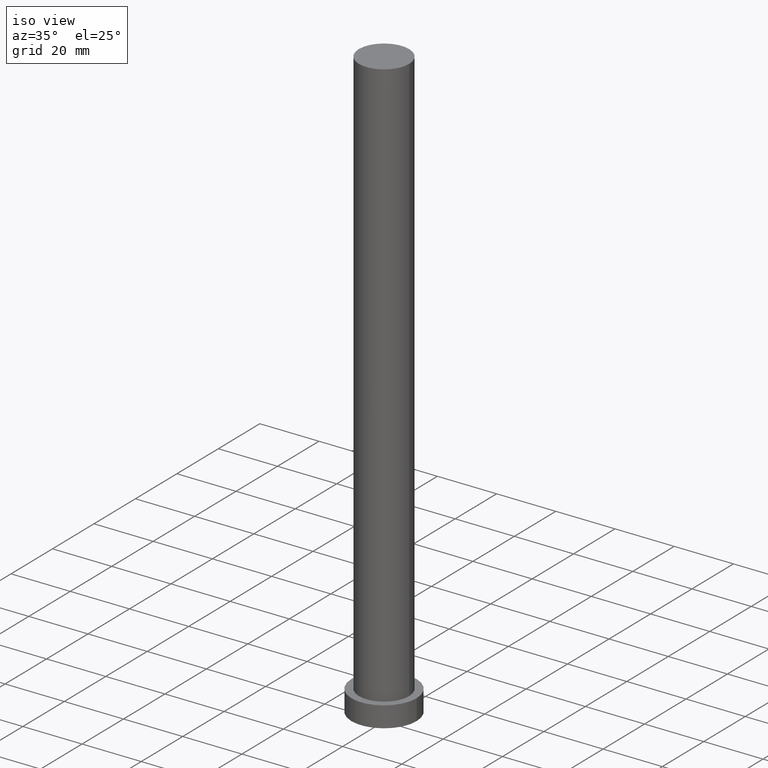
[diagram: clean part render]
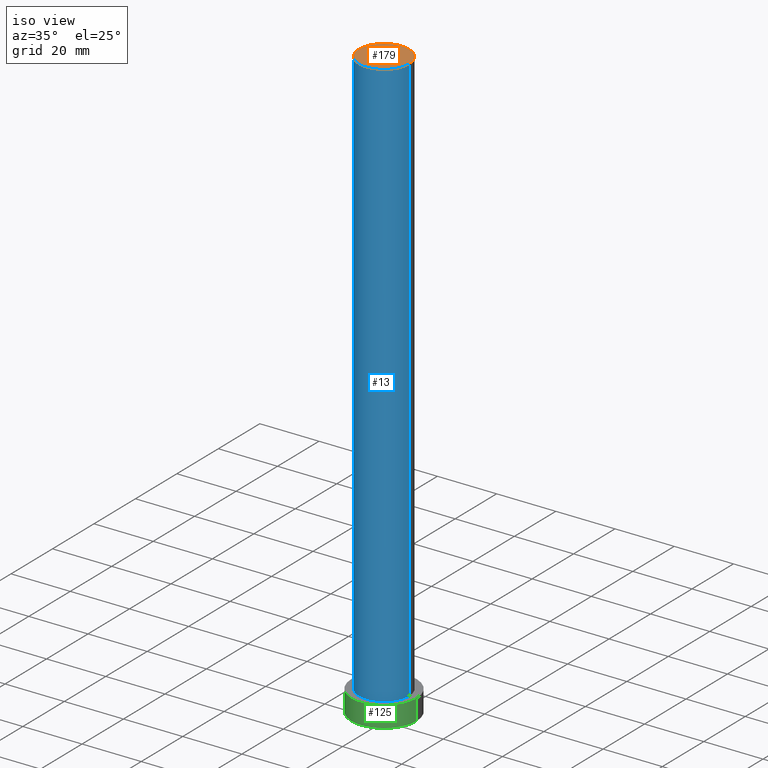
[diagram: same view with three faces highlighted in distinct colors, each labeled with its STEP entity id]
A machine part, iso view with three faces highlighted in distinct colors.
Their STEP definitions:

[orange] entity #179 — the highlighted planar face has unit normal (0, 0, 1).
#7 = AXIS2_PLACEMENT_3D ( 'NONE', #89, #120, #103 ) ;
#14 = ORIENTED_EDGE ( 'NONE', *, *, #20, .T. ) ;
#20 = EDGE_CURVE ( 'NONE', #144, #82, #83, .T. ) ;
#40 = DIRECTION ( 'NONE',  ( 0.000000000000000000, 0.000000000000000000, 1.000000000000000000 ) ) ;
#82 = VERTEX_POINT ( 'NONE', #219 ) ;
#83 = CIRCLE ( 'NONE', #234, 8.500000000000000000 ) ;
#89 = CARTESIAN_POINT ( 'NONE',  ( 0.000000000000000000, 0.000000000000000000, 200.0000000000000000 ) ) ;
#103 = DIRECTION ( 'NONE',  ( 1.000000000000000000, 0.000000000000000000, 0.000000000000000000 ) ) ;
#115 = AXIS2_PLACEMENT_3D ( 'NONE', #212, #189, #252 ) ;
#120 = DIRECTION ( 'NONE',  ( 0.000000000000000000, 0.000000000000000000, 1.000000000000000000 ) ) ;
#144 = VERTEX_POINT ( 'NONE', #193 ) ;
#149 = PLANE ( 'NONE',  #115 ) ;
#151 = DIRECTION ( 'NONE',  ( 1.000000000000000000, 0.000000000000000000, 0.000000000000000000 ) ) ;
#164 = ORIENTED_EDGE ( 'NONE', *, *, #232, .T. ) ;
#167 = CIRCLE ( 'NONE', #7, 8.500000000000000000 ) ;
#175 = FACE_OUTER_BOUND ( 'NONE', #181, .T. ) ;
#179 = ADVANCED_FACE ( 'NONE', ( #175 ), #149, .T. ) ;
#181 = EDGE_LOOP ( 'NONE', ( #164, #14 ) ) ;
#186 = CARTESIAN_POINT ( 'NONE',  ( 0.000000000000000000, 0.000000000000000000, 200.0000000000000000 ) ) ;
#189 = DIRECTION ( 'NONE',  ( 0.000000000000000000, 0.000000000000000000, 1.000000000000000000 ) ) ;
#193 = CARTESIAN_POINT ( 'NONE',  ( 8.500000000000000000, 1.040949779275250140E-15, 200.0000000000000000 ) ) ;
#212 = CARTESIAN_POINT ( 'NONE',  ( 0.000000000000000000, 0.000000000000000000, 200.0000000000000000 ) ) ;
#219 = CARTESIAN_POINT ( 'NONE',  ( -8.500000000000000000, 0.000000000000000000, 200.0000000000000000 ) ) ;
#232 = EDGE_CURVE ( 'NONE', #82, #144, #167, .T. ) ;
#234 = AXIS2_PLACEMENT_3D ( 'NONE', #186, #40, #151 ) ;
#252 = DIRECTION ( 'NONE',  ( 1.000000000000000000, 0.000000000000000000, -0.000000000000000000 ) ) ;

[blue] entity #13 — the highlighted cylindrical surface (edge-blend (fillet) strip) has radius 8.5 mm, axis along (-0, -0, -1).
#7 = AXIS2_PLACEMENT_3D ( 'NONE', #89, #120, #103 ) ;
#8 = CARTESIAN_POINT ( 'NONE',  ( -8.500000000000000000, 0.000000000000000000, 7.000000000000000000 ) ) ;
#13 = ADVANCED_FACE ( 'NONE', ( #166 ), #61, .T. ) ;
#17 = LINE ( 'NONE', #76, #202 ) ;
#22 = DIRECTION ( 'NONE',  ( -0.000000000000000000, -0.000000000000000000, -1.000000000000000000 ) ) ;
#36 = VERTEX_POINT ( 'NONE', #92 ) ;
#38 = DIRECTION ( 'NONE',  ( -1.000000000000000000, 0.000000000000000000, 0.000000000000000000 ) ) ;
#41 = CIRCLE ( 'NONE', #216, 8.500000000000000000 ) ;
#44 = ORIENTED_EDGE ( 'NONE', *, *, #49, .F. ) ;
#49 = EDGE_CURVE ( 'NONE', #144, #36, #17, .T. ) ;
#59 = DIRECTION ( 'NONE',  ( -0.000000000000000000, -0.000000000000000000, -1.000000000000000000 ) ) ;
#61 = CYLINDRICAL_SURFACE ( 'NONE', #122, 8.500000000000000000 ) ;
#76 = CARTESIAN_POINT ( 'NONE',  ( 8.500000000000000000, 1.040949779275250140E-15, 200.0000000000000000 ) ) ;
#82 = VERTEX_POINT ( 'NONE', #219 ) ;
#84 = ORIENTED_EDGE ( 'NONE', *, *, #165, .T. ) ;
#89 = CARTESIAN_POINT ( 'NONE',  ( 0.000000000000000000, 0.000000000000000000, 200.0000000000000000 ) ) ;
#92 = CARTESIAN_POINT ( 'NONE',  ( 8.500000000000000000, 1.040949779275250140E-15, 7.000000000000000000 ) ) ;
#95 = CARTESIAN_POINT ( 'NONE',  ( -8.500000000000000000, 0.000000000000000000, 200.0000000000000000 ) ) ;
#97 = ORIENTED_EDGE ( 'NONE', *, *, #232, .F. ) ;
#103 = DIRECTION ( 'NONE',  ( 1.000000000000000000, 0.000000000000000000, 0.000000000000000000 ) ) ;
#108 = LINE ( 'NONE', #95, #168 ) ;
#120 = DIRECTION ( 'NONE',  ( 0.000000000000000000, 0.000000000000000000, 1.000000000000000000 ) ) ;
#122 = AXIS2_PLACEMENT_3D ( 'NONE', #253, #247, #38 ) ;
#124 = EDGE_LOOP ( 'NONE', ( #44, #97, #84, #243 ) ) ;
#133 = EDGE_CURVE ( 'NONE', #198, #36, #41, .T. ) ;
#144 = VERTEX_POINT ( 'NONE', #193 ) ;
#165 = EDGE_CURVE ( 'NONE', #82, #198, #108, .T. ) ;
#166 = FACE_OUTER_BOUND ( 'NONE', #124, .T. ) ;
#167 = CIRCLE ( 'NONE', #7, 8.500000000000000000 ) ;
#168 = VECTOR ( 'NONE', #22, 1000.000000000000000 ) ;
#172 = DIRECTION ( 'NONE',  ( 0.000000000000000000, 0.000000000000000000, 1.000000000000000000 ) ) ;
#193 = CARTESIAN_POINT ( 'NONE',  ( 8.500000000000000000, 1.040949779275250140E-15, 200.0000000000000000 ) ) ;
#194 = CARTESIAN_POINT ( 'NONE',  ( 0.000000000000000000, 0.000000000000000000, 7.000000000000000000 ) ) ;
#198 = VERTEX_POINT ( 'NONE', #8 ) ;
#202 = VECTOR ( 'NONE', #59, 1000.000000000000000 ) ;
#216 = AXIS2_PLACEMENT_3D ( 'NONE', #194, #172, #235 ) ;
#219 = CARTESIAN_POINT ( 'NONE',  ( -8.500000000000000000, 0.000000000000000000, 200.0000000000000000 ) ) ;
#232 = EDGE_CURVE ( 'NONE', #82, #144, #167, .T. ) ;
#235 = DIRECTION ( 'NONE',  ( 1.000000000000000000, 0.000000000000000000, 0.000000000000000000 ) ) ;
#243 = ORIENTED_EDGE ( 'NONE', *, *, #133, .T. ) ;
#247 = DIRECTION ( 'NONE',  ( -0.000000000000000000, -0.000000000000000000, -1.000000000000000000 ) ) ;
#253 = CARTESIAN_POINT ( 'NONE',  ( 0.000000000000000000, 0.000000000000000000, 200.0000000000000000 ) ) ;

[green] entity #125 — the highlighted cylindrical surface (partial cylindrical patch) has radius 11 mm, axis along (-0, -0, -1).
#6 = DIRECTION ( 'NONE',  ( 1.000000000000000000, 0.000000000000000000, 0.000000000000000000 ) ) ;
#11 = DIRECTION ( 'NONE',  ( 0.000000000000000000, 0.000000000000000000, 1.000000000000000000 ) ) ;
#24 = VERTEX_POINT ( 'NONE', #91 ) ;
#25 = CIRCLE ( 'NONE', #163, 11.00000000000000000 ) ;
#33 = EDGE_CURVE ( 'NONE', #24, #96, #231, .T. ) ;
#39 = CYLINDRICAL_SURFACE ( 'NONE', #107, 11.00000000000000000 ) ;
#42 = DIRECTION ( 'NONE',  ( -1.000000000000000000, 0.000000000000000000, 0.000000000000000000 ) ) ;
#46 = ORIENTED_EDGE ( 'NONE', *, *, #255, .T. ) ;
#53 = EDGE_CURVE ( 'NONE', #96, #73, #129, .T. ) ;
#60 = CARTESIAN_POINT ( 'NONE',  ( 11.00000000000000000, 1.347111479062088405E-15, 7.000000000000000000 ) ) ;
#70 = LINE ( 'NONE', #142, #147 ) ;
#73 = VERTEX_POINT ( 'NONE', #93 ) ;
#74 = AXIS2_PLACEMENT_3D ( 'NONE', #233, #210, #213 ) ;
#86 = EDGE_LOOP ( 'NONE', ( #205, #177, #46, #221 ) ) ;
#91 = CARTESIAN_POINT ( 'NONE',  ( -11.00000000000000000, 0.000000000000000000, 7.000000000000000000 ) ) ;
#93 = CARTESIAN_POINT ( 'NONE',  ( 11.00000000000000000, 1.347111479062088405E-15, 0.000000000000000000 ) ) ;
#96 = VERTEX_POINT ( 'NONE', #60 ) ;
#107 = AXIS2_PLACEMENT_3D ( 'NONE', #214, #254, #42 ) ;
#125 = ADVANCED_FACE ( 'NONE', ( #211 ), #39, .T. ) ;
#128 = DIRECTION ( 'NONE',  ( -0.000000000000000000, -0.000000000000000000, -1.000000000000000000 ) ) ;
#129 = LINE ( 'NONE', #169, #131 ) ;
#131 = VECTOR ( 'NONE', #128, 1000.000000000000000 ) ;
#142 = CARTESIAN_POINT ( 'NONE',  ( -11.00000000000000000, 0.000000000000000000, 7.000000000000000000 ) ) ;
#147 = VECTOR ( 'NONE', #245, 1000.000000000000000 ) ;
#160 = VERTEX_POINT ( 'NONE', #215 ) ;
#163 = AXIS2_PLACEMENT_3D ( 'NONE', #244, #11, #6 ) ;
#169 = CARTESIAN_POINT ( 'NONE',  ( 11.00000000000000000, 1.347111479062088405E-15, 7.000000000000000000 ) ) ;
#177 = ORIENTED_EDGE ( 'NONE', *, *, #33, .F. ) ;
#205 = ORIENTED_EDGE ( 'NONE', *, *, #53, .F. ) ;
#210 = DIRECTION ( 'NONE',  ( 0.000000000000000000, 0.000000000000000000, 1.000000000000000000 ) ) ;
#211 = FACE_OUTER_BOUND ( 'NONE', #86, .T. ) ;
#213 = DIRECTION ( 'NONE',  ( 1.000000000000000000, 0.000000000000000000, 0.000000000000000000 ) ) ;
#214 = CARTESIAN_POINT ( 'NONE',  ( 0.000000000000000000, 0.000000000000000000, 7.000000000000000000 ) ) ;
#215 = CARTESIAN_POINT ( 'NONE',  ( -11.00000000000000000, 0.000000000000000000, 0.000000000000000000 ) ) ;
#218 = EDGE_CURVE ( 'NONE', #160, #73, #25, .T. ) ;
#221 = ORIENTED_EDGE ( 'NONE', *, *, #218, .T. ) ;
#231 = CIRCLE ( 'NONE', #74, 11.00000000000000000 ) ;
#233 = CARTESIAN_POINT ( 'NONE',  ( 0.000000000000000000, 0.000000000000000000, 7.000000000000000000 ) ) ;
#244 = CARTESIAN_POINT ( 'NONE',  ( 0.000000000000000000, 0.000000000000000000, 0.000000000000000000 ) ) ;
#245 = DIRECTION ( 'NONE',  ( -0.000000000000000000, -0.000000000000000000, -1.000000000000000000 ) ) ;
#254 = DIRECTION ( 'NONE',  ( -0.000000000000000000, -0.000000000000000000, -1.000000000000000000 ) ) ;
#255 = EDGE_CURVE ( 'NONE', #24, #160, #70, .T. ) ;